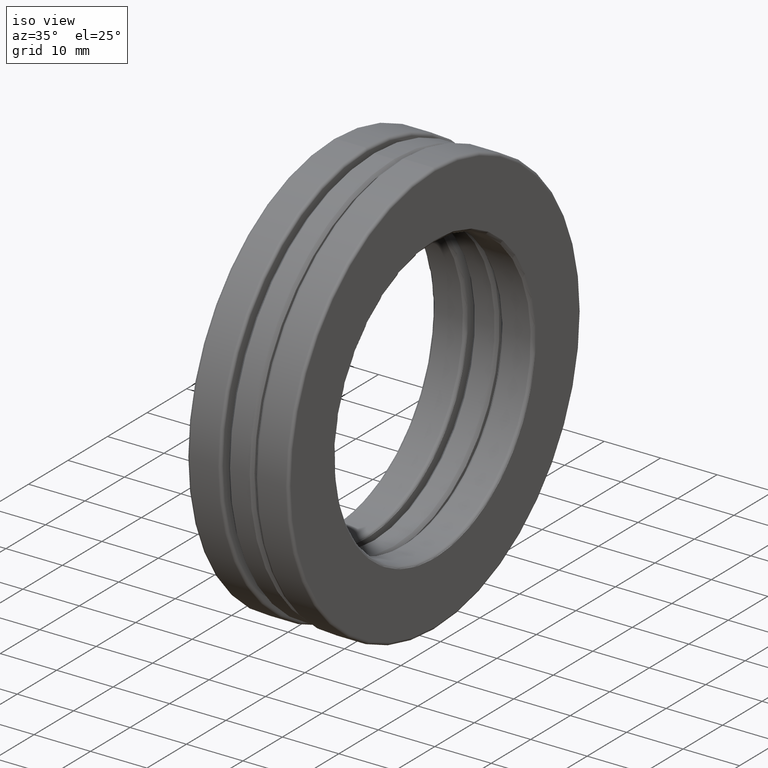
[diagram: clean part render]
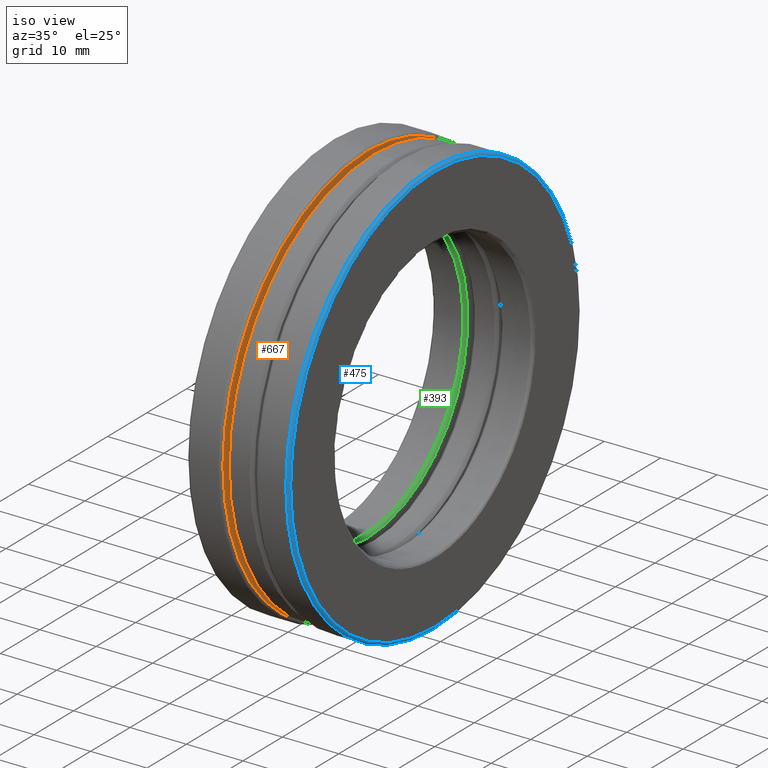
[diagram: same view with three faces highlighted in distinct colors, each labeled with its STEP entity id]
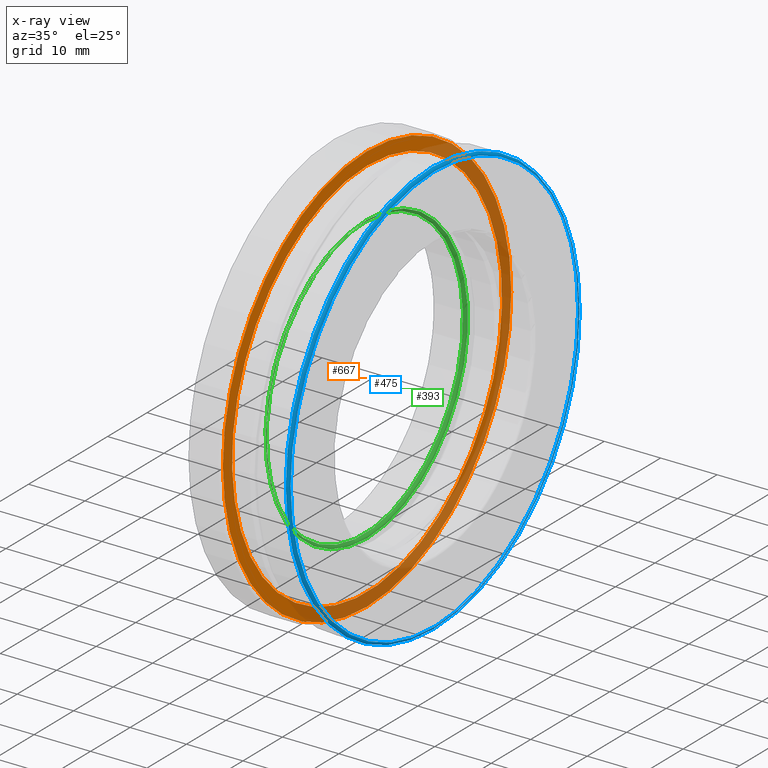
[diagram: x-ray of the same camera — body ghosted, the three highlighted faces saturated]
A machine part, iso view with three faces highlighted in distinct colors.
The next image is the same camera in x-ray (body ghosted, the three faces saturated) — at least one of them is partly hidden behind the body in this view.
Their STEP definitions:

[orange] entity #667 — the highlighted planar face has unit normal (1, 0, 0).
#15 = PLANE ( 'NONE',  #559 ) ;
#43 = DIRECTION ( 'NONE',  ( -1.000000000000000000, -0.0000000000000000000, -0.0000000000000000000 ) ) ;
#88 = CARTESIAN_POINT ( 'NONE',  ( -0.1181690299999999100, 0.0000000000000000000, 0.0000000000000000000 ) ) ;
#123 = AXIS2_PLACEMENT_3D ( 'NONE', #88, #274, #413 ) ;
#134 = CARTESIAN_POINT ( 'NONE',  ( -0.1181690299999999100, 0.0000000000000000000, 0.0000000000000000000 ) ) ;
#147 = EDGE_LOOP ( 'NONE', ( #442 ) ) ;
#203 = DIRECTION ( 'NONE',  ( 0.0000000000000000000, 0.0000000000000000000, -1.000000000000000000 ) ) ;
#212 = CARTESIAN_POINT ( 'NONE',  ( -0.1181690299999999100, 0.0000000000000000000, 1.344791312443223800 ) ) ;
#237 = CARTESIAN_POINT ( 'NONE',  ( -0.1181690299999999100, 0.0000000000000000000, 0.0000000000000000000 ) ) ;
#248 = CIRCLE ( 'NONE', #123, 1.344791312443223800 ) ;
#274 = DIRECTION ( 'NONE',  ( -1.000000000000000000, -0.0000000000000000000, -0.0000000000000000000 ) ) ;
#308 = CIRCLE ( 'NONE', #493, 1.436499999999999200 ) ;
#335 = DIRECTION ( 'NONE',  ( 1.000000000000000000, 0.0000000000000000000, 0.0000000000000000000 ) ) ;
#372 = ORIENTED_EDGE ( 'NONE', *, *, #526, .F. ) ;
#387 = EDGE_LOOP ( 'NONE', ( #372 ) ) ;
#413 = DIRECTION ( 'NONE',  ( 0.0000000000000000000, 0.0000000000000000000, 1.000000000000000000 ) ) ;
#442 = ORIENTED_EDGE ( 'NONE', *, *, #769, .T. ) ;
#449 = FACE_BOUND ( 'NONE', #147, .T. ) ;
#493 = AXIS2_PLACEMENT_3D ( 'NONE', #237, #43, #796 ) ;
#523 = CARTESIAN_POINT ( 'NONE',  ( -0.1181690299999999100, 0.0000000000000000000, 1.436499999999999200 ) ) ;
#526 = EDGE_CURVE ( 'NONE', #804, #804, #308, .T. ) ;
#559 = AXIS2_PLACEMENT_3D ( 'NONE', #134, #335, #203 ) ;
#584 = FACE_OUTER_BOUND ( 'NONE', #387, .T. ) ;
#667 = ADVANCED_FACE ( 'NONE', ( #449, #584 ), #15, .T. ) ;
#739 = VERTEX_POINT ( 'NONE', #212 ) ;
#769 = EDGE_CURVE ( 'NONE', #739, #739, #248, .T. ) ;
#796 = DIRECTION ( 'NONE',  ( 0.0000000000000000000, 0.0000000000000000000, 1.000000000000000000 ) ) ;
#804 = VERTEX_POINT ( 'NONE', #523 ) ;

[blue] entity #475 — the highlighted toroidal blend (fillet) surface has major radius 36.4871 mm and minor (blend) radius 0.508 mm.
#22 = DIRECTION ( 'NONE',  ( 0.0000000000000000000, 0.0000000000000000000, 1.000000000000000000 ) ) ;
#33 = CIRCLE ( 'NONE', #390, 1.436499999999999200 ) ;
#46 = AXIS2_PLACEMENT_3D ( 'NONE', #349, #155, #91 ) ;
#91 = DIRECTION ( 'NONE',  ( 0.0000000000000000000, 0.0000000000000000000, 1.000000000000000000 ) ) ;
#121 = ORIENTED_EDGE ( 'NONE', *, *, #760, .F. ) ;
#155 = DIRECTION ( 'NONE',  ( -1.000000000000000000, -0.0000000000000000000, -0.0000000000000000000 ) ) ;
#160 = CARTESIAN_POINT ( 'NONE',  ( 0.3345000000000006900, 0.0000000000000000000, 1.456499999999999700 ) ) ;
#169 = DIRECTION ( 'NONE',  ( -1.000000000000000000, -0.0000000000000000000, -0.0000000000000000000 ) ) ;
#216 = CARTESIAN_POINT ( 'NONE',  ( 0.3545000000000001500, 0.0000000000000000000, 0.0000000000000000000 ) ) ;
#328 = DIRECTION ( 'NONE',  ( 0.0000000000000000000, 0.0000000000000000000, 1.000000000000000000 ) ) ;
#349 = CARTESIAN_POINT ( 'NONE',  ( 0.3345000000000006900, 0.0000000000000000000, 0.0000000000000000000 ) ) ;
#367 = FACE_OUTER_BOUND ( 'NONE', #434, .T. ) ;
#389 = VERTEX_POINT ( 'NONE', #510 ) ;
#390 = AXIS2_PLACEMENT_3D ( 'NONE', #216, #590, #22 ) ;
#398 = CARTESIAN_POINT ( 'NONE',  ( 0.3345000000000006900, 0.0000000000000000000, 0.0000000000000000000 ) ) ;
#426 = AXIS2_PLACEMENT_3D ( 'NONE', #398, #169, #328 ) ;
#434 = EDGE_LOOP ( 'NONE', ( #541 ) ) ;
#475 = ADVANCED_FACE ( 'NONE', ( #637, #367 ), #677, .T. ) ;
#510 = CARTESIAN_POINT ( 'NONE',  ( 0.3545000000000001500, 0.0000000000000000000, 1.436499999999999200 ) ) ;
#541 = ORIENTED_EDGE ( 'NONE', *, *, #785, .T. ) ;
#542 = VERTEX_POINT ( 'NONE', #160 ) ;
#590 = DIRECTION ( 'NONE',  ( -1.000000000000000000, -0.0000000000000000000, -0.0000000000000000000 ) ) ;
#637 = FACE_OUTER_BOUND ( 'NONE', #802, .T. ) ;
#677 = TOROIDAL_SURFACE ( 'NONE', #426, 1.436499999999999200, 0.01999999999999988900 ) ;
#712 = CIRCLE ( 'NONE', #46, 1.456499999999999700 ) ;
#760 = EDGE_CURVE ( 'NONE', #542, #542, #712, .T. ) ;
#785 = EDGE_CURVE ( 'NONE', #389, #389, #33, .T. ) ;
#802 = EDGE_LOOP ( 'NONE', ( #121 ) ) ;

[green] entity #393 — the highlighted toroidal blend (fillet) surface has major radius 25.5143 mm and minor (blend) radius 0.508 mm.
#4 = VERTEX_POINT ( 'NONE', #794 ) ;
#45 = EDGE_CURVE ( 'NONE', #4, #4, #673, .T. ) ;
#63 = AXIS2_PLACEMENT_3D ( 'NONE', #122, #685, #117 ) ;
#117 = DIRECTION ( 'NONE',  ( 0.0000000000000000000, 0.0000000000000000000, 1.000000000000000000 ) ) ;
#122 = CARTESIAN_POINT ( 'NONE',  ( -0.1381690299999998600, 0.0000000000000000000, 0.0000000000000000000 ) ) ;
#172 = TOROIDAL_SURFACE ( 'NONE', #63, 1.004499999999999900, 0.02000000000000000700 ) ;
#182 = DIRECTION ( 'NONE',  ( 0.0000000000000000000, 0.0000000000000000000, 1.000000000000000000 ) ) ;
#200 = EDGE_CURVE ( 'NONE', #582, #582, #384, .T. ) ;
#245 = EDGE_LOOP ( 'NONE', ( #411 ) ) ;
#247 = DIRECTION ( 'NONE',  ( -1.000000000000000000, -0.0000000000000000000, -0.0000000000000000000 ) ) ;
#278 = CARTESIAN_POINT ( 'NONE',  ( -0.1181690299999999100, 0.0000000000000000000, 1.004499999999999900 ) ) ;
#313 = DIRECTION ( 'NONE',  ( 0.0000000000000000000, 0.0000000000000000000, 1.000000000000000000 ) ) ;
#359 = CARTESIAN_POINT ( 'NONE',  ( -0.1381690299999999100, 0.0000000000000000000, 0.0000000000000000000 ) ) ;
#377 = FACE_OUTER_BOUND ( 'NONE', #691, .T. ) ;
#384 = CIRCLE ( 'NONE', #735, 1.004499999999999900 ) ;
#393 = ADVANCED_FACE ( 'NONE', ( #377, #462 ), #172, .T. ) ;
#411 = ORIENTED_EDGE ( 'NONE', *, *, #45, .T. ) ;
#462 = FACE_OUTER_BOUND ( 'NONE', #245, .T. ) ;
#478 = DIRECTION ( 'NONE',  ( -1.000000000000000000, -0.0000000000000000000, -0.0000000000000000000 ) ) ;
#582 = VERTEX_POINT ( 'NONE', #278 ) ;
#595 = ORIENTED_EDGE ( 'NONE', *, *, #200, .F. ) ;
#610 = CARTESIAN_POINT ( 'NONE',  ( -0.1181690299999999100, 0.0000000000000000000, 0.0000000000000000000 ) ) ;
#673 = CIRCLE ( 'NONE', #817, 0.9844999999999999300 ) ;
#685 = DIRECTION ( 'NONE',  ( -1.000000000000000000, -0.0000000000000000000, -0.0000000000000000000 ) ) ;
#691 = EDGE_LOOP ( 'NONE', ( #595 ) ) ;
#735 = AXIS2_PLACEMENT_3D ( 'NONE', #610, #478, #182 ) ;
#794 = CARTESIAN_POINT ( 'NONE',  ( -0.1381690299999999100, 0.0000000000000000000, 0.9844999999999999300 ) ) ;
#817 = AXIS2_PLACEMENT_3D ( 'NONE', #359, #247, #313 ) ;